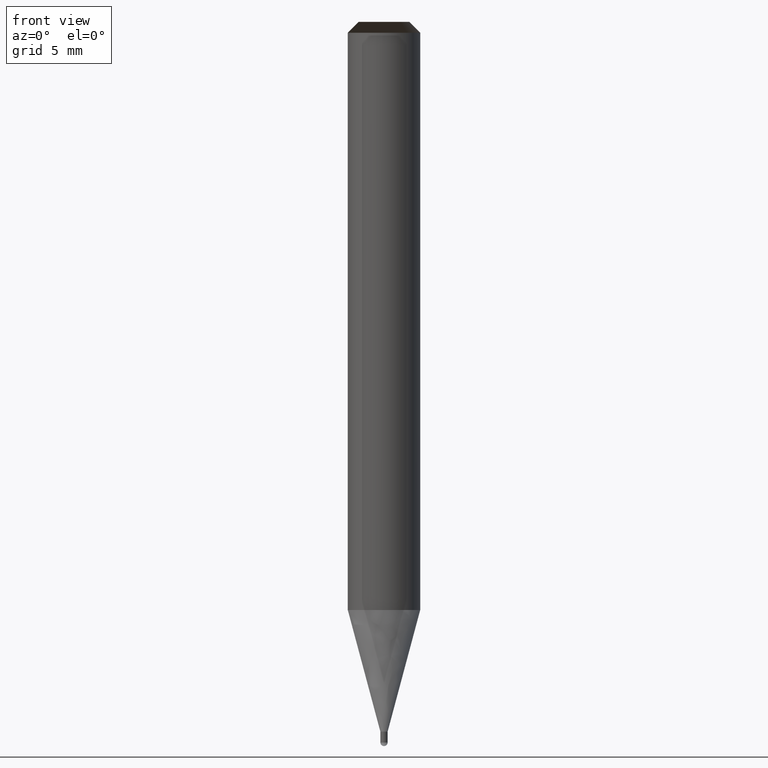
[diagram: clean part render]
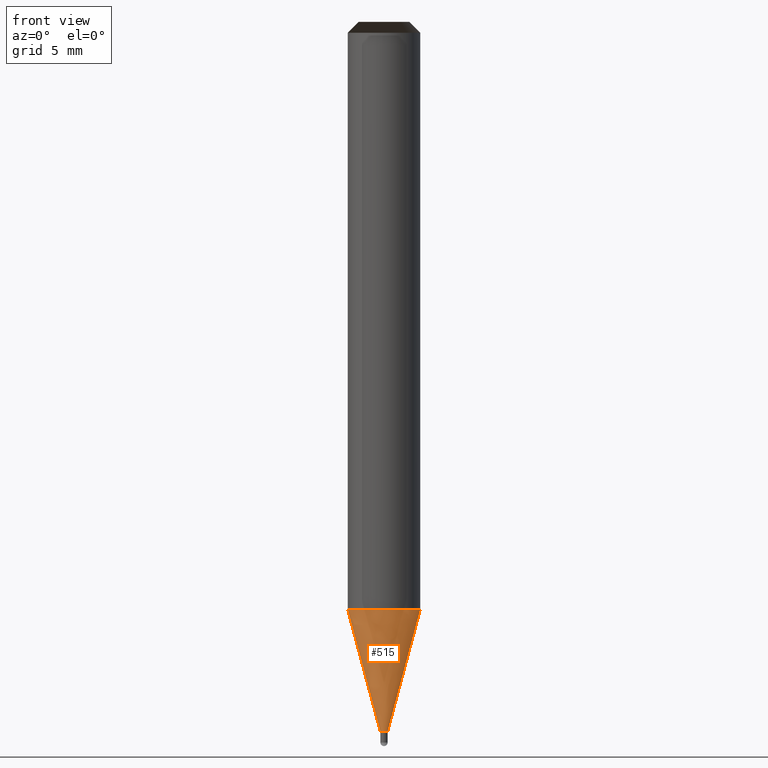
[diagram: same view with one face highlighted and labeled with its STEP entity id]
A machine part, front view. The second image highlights one B-rep face of the part: STEP entity #515.
In plain terms, the highlighted face is a freeform B-spline surface patch.
Its self-contained STEP definition (entity closure, byte-faithful):
#202=CARTESIAN_POINT('',(0.2,0.0,-6.717691453624));
#206=CARTESIAN_POINT('',(-0.2,0.0,-6.717691453624));
#207=CARTESIAN_POINT('',(2.0,0.0,-0.0));
#211=CARTESIAN_POINT('',(-2.0,0.0,-0.0));
#223=CARTESIAN_POINT('',(-0.2,-0.2,-6.717691453624));
#224=CARTESIAN_POINT('',(0.0,-0.2,-6.717691453624));
#225=CARTESIAN_POINT('',(0.2,-0.2,-6.717691453624));
#226=CARTESIAN_POINT('',(-2.0,-2.0,-0.0));
#227=CARTESIAN_POINT('',(0.0,-2.0,-0.0));
#228=CARTESIAN_POINT('',(2.0,-2.0,-0.0));
#496=(
BOUNDED_SURFACE()
B_SPLINE_SURFACE(1,2,(
(#206,#223,#224,#225,#202),
(#211,#226,#227,#228,#207)
), .UNSPECIFIED.,.F.,.F.,.F.)
B_SPLINE_SURFACE_WITH_KNOTS((2,2),(3,2,3),(
0.0,1.0),(
0.0,0.5,1.0), .UNSPECIFIED.)
GEOMETRIC_REPRESENTATION_ITEM()
RATIONAL_B_SPLINE_SURFACE(((1.0,0.707106781187,1.0,0.707106781187,1.0),
(1.0,0.707106781187,1.0,0.707106781187,1.0)
))
REPRESENTATION_ITEM('')
SURFACE()
);
#497=(
BOUNDED_CURVE()
B_SPLINE_CURVE(1,(#211,#206),.UNSPECIFIED.,.F.,.F.)
B_SPLINE_CURVE_WITH_KNOTS((2,2),
(0.0,1.0),.UNSPECIFIED.)
CURVE()
GEOMETRIC_REPRESENTATION_ITEM()
RATIONAL_B_SPLINE_CURVE((1.0,1.0))
REPRESENTATION_ITEM('')
);
#498=(
BOUNDED_CURVE()
B_SPLINE_CURVE(2,(#206,#223,#224,#225,#202),.UNSPECIFIED.,.F.,.F.)
B_SPLINE_CURVE_WITH_KNOTS((3,2,3),
(0.0,0.5,1.0),.UNSPECIFIED.)
CURVE()
GEOMETRIC_REPRESENTATION_ITEM()
RATIONAL_B_SPLINE_CURVE((1.0,0.707106781187,1.0,0.707106781187,1.0))
REPRESENTATION_ITEM('')
);
#499=(
BOUNDED_CURVE()
B_SPLINE_CURVE(1,(#202,#207),.UNSPECIFIED.,.F.,.F.)
B_SPLINE_CURVE_WITH_KNOTS((2,2),
(0.0,1.0),.UNSPECIFIED.)
CURVE()
GEOMETRIC_REPRESENTATION_ITEM()
RATIONAL_B_SPLINE_CURVE((1.0,1.0))
REPRESENTATION_ITEM('')
);
#500=(
BOUNDED_CURVE()
B_SPLINE_CURVE(2,(#207,#228,#227,#226,#211),.UNSPECIFIED.,.F.,.F.)
B_SPLINE_CURVE_WITH_KNOTS((3,2,3),
(0.0,0.5,1.0),.UNSPECIFIED.)
CURVE()
GEOMETRIC_REPRESENTATION_ITEM()
RATIONAL_B_SPLINE_CURVE((1.0,0.707106781187,1.0,0.707106781187,1.0))
REPRESENTATION_ITEM('')
);
#501=VERTEX_POINT('',#202);
#502=VERTEX_POINT('',#206);
#503=VERTEX_POINT('',#207);
#504=VERTEX_POINT('',#211);
#505=EDGE_CURVE('',#504,#502,#497,.T.);
#506=EDGE_CURVE('',#502,#501,#498,.T.);
#507=EDGE_CURVE('',#501,#503,#499,.T.);
#508=EDGE_CURVE('',#503,#504,#500,.T.);
#509=ORIENTED_EDGE('',*,*,#505,.T.);
#510=ORIENTED_EDGE('',*,*,#506,.T.);
#511=ORIENTED_EDGE('',*,*,#507,.T.);
#512=ORIENTED_EDGE('',*,*,#508,.T.);
#513=EDGE_LOOP('',(#509,#510,#511,#512));
#514=FACE_OUTER_BOUND('',#513,.T.);
#515=ADVANCED_FACE('',(#514),#496,.T.);